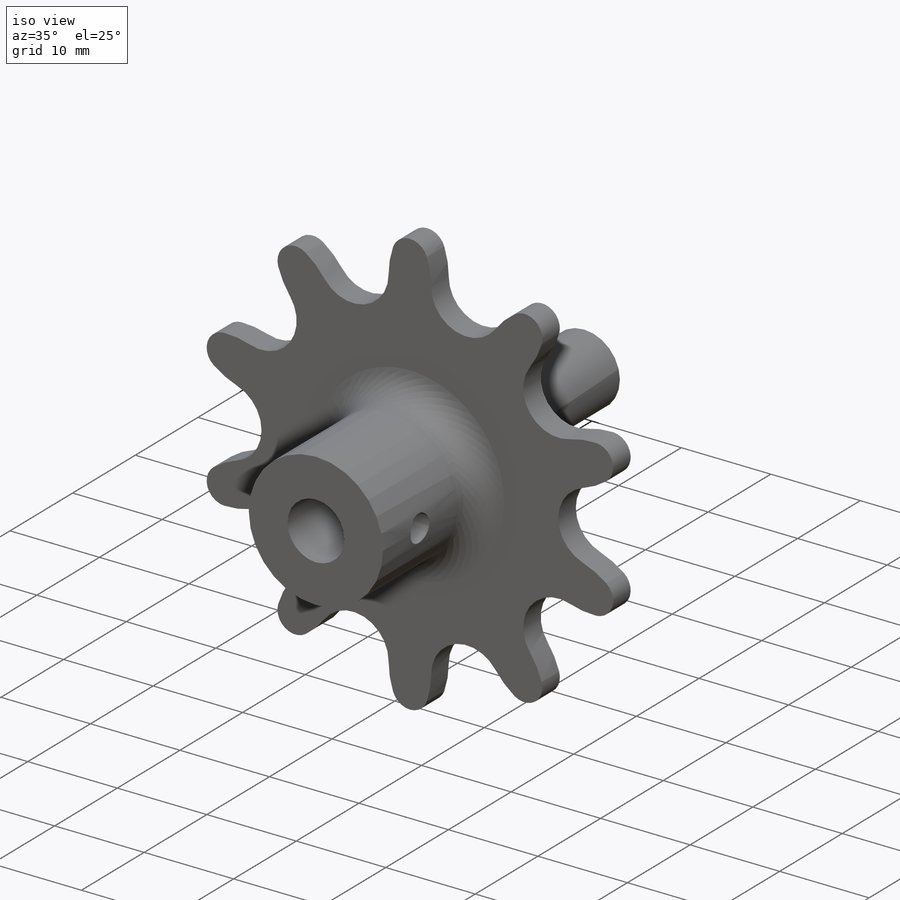
[diagram: iso view]
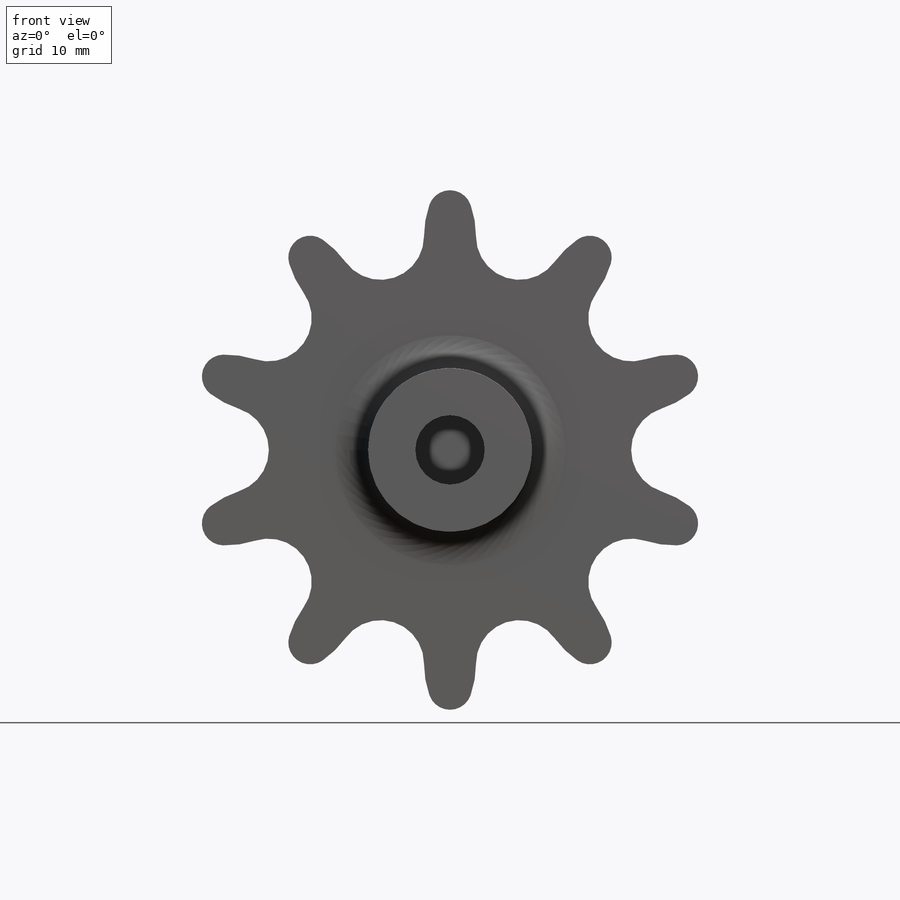
[diagram: front view]
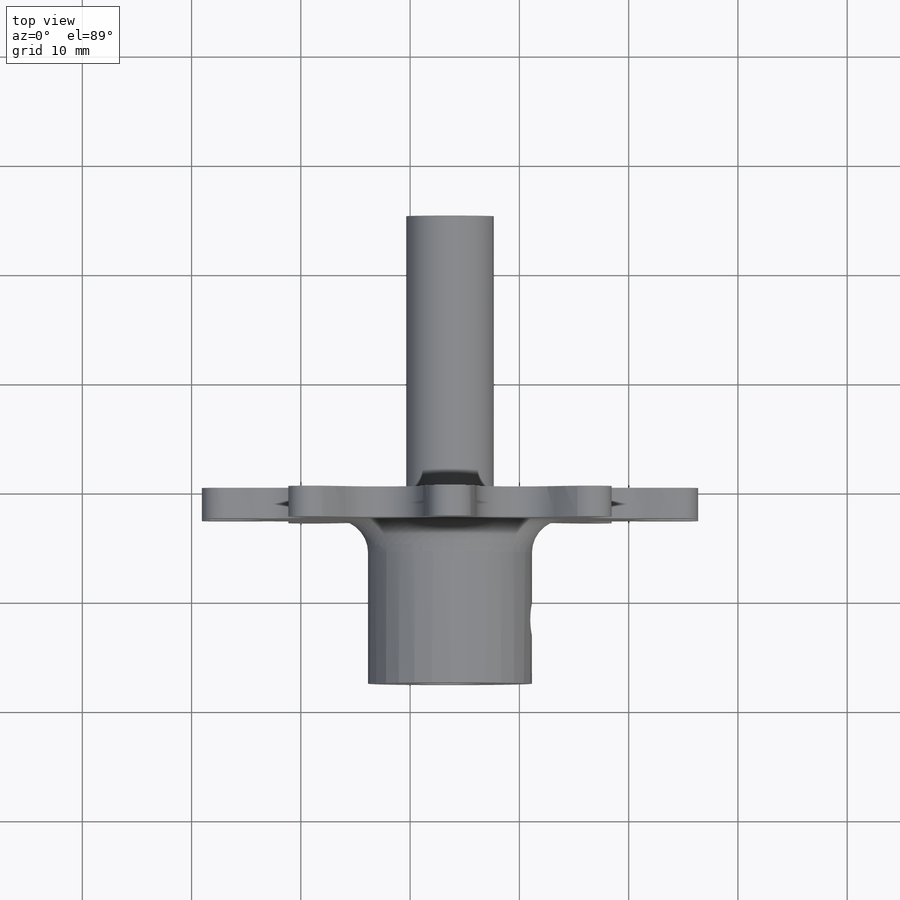
[diagram: top view]
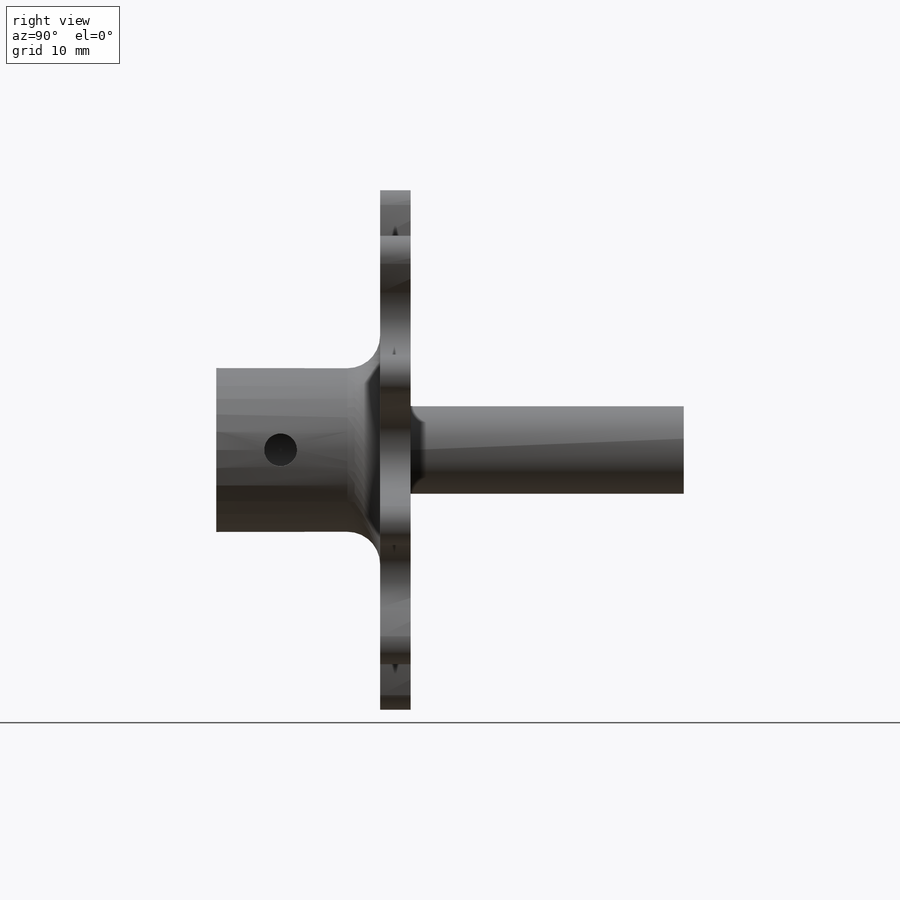
[diagram: right view]
SOLIDWORKS PART (.sldprt)
format: sldprt  version: not decoded by parser v0  size: 275,456 bytes
history: native  units: mm
features: sketch x4, extrude x3, material x1, fillet x1, cut_extrude x1 (+11 scaffold rows collapsed)
feature tree (21):
  scaffold x11  (default folders/planes/origin — collapsed)
  material  "Material <not specified>"
  sketch  "Sketch2"  dims[c1.D1=7.9375mm c1.D4=2.0mm c1.D2=12.7mm c1.D3=~36.98946mm c2.D3=36.0deg c2.D5=10.0]
  extrude  "Boss-Extrude1"  Depth=2.794mm
  sketch  "Sketch3"  dims[D1=15.0mm D2=6.35mm]
  extrude  "Boss-Extrude2"  Depth=15mm
  fillet  "Fillet1"  Radius=3mm
  sketch  "Sketch4"  dims[D1=3.0mm]
  cut_extrude  "Cut-Extrude1"  Depth=15mm
  sketch  "Sketch5"  dims[D1=8.0mm]
  extrude  "Boss-Extrude3"  Depth=25mm
decode coverage: 9 of 9 modeling features carry decoded parameters
note: ~ marks probable driven/reference dimensions
note: suppression state not decoded; provenance and decode notes live in map.json
